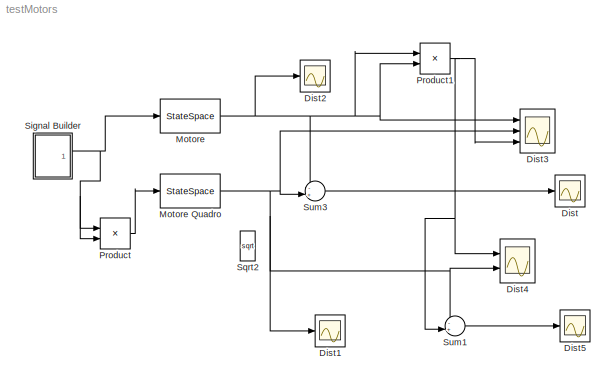
MODEL testMotors
KIND model
BLOCK [Scope] Dist
  DataFormat = StructureWithTime
  Floating = off
  LimitDataPoints = off
  NumInputPorts = 1
  Ports = [1]
  SID = 4
  SampleTime = 0
  ShowLegends = off
  TimeRange = 15
  YMax = 0.09
  YMin = -0.1
  ZoomMode = yonly
BLOCK [Scope] Dist1
  DataFormat = StructureWithTime
  Floating = off
  LimitDataPoints = off
  NumInputPorts = 1
  Ports = [1]
  SID = 6
  SampleTime = 0
  SaveName = ScopeData1
  ShowLegends = off
  TimeRange = 15
  YMax = 0.09
  YMin = -0.1
  ZoomMode = yonly
BLOCK [Scope] Dist2
  DataFormat = StructureWithTime
  Floating = off
  LimitDataPoints = off
  NumInputPorts = 1
  Ports = [1]
  SID = 7
  SampleTime = 0
  SaveName = ScopeData2
  ShowLegends = off
  TimeRange = 15
  YMax = 0.09
  YMin = -0.1
  ZoomMode = yonly
BLOCK [Scope] Dist3
  DataFormat = StructureWithTime
  Floating = off
  LimitDataPoints = off
  NumInputPorts = 3
  Ports = [3]
  SID = 12
  SampleTime = 0
  SaveName = ScopeData3
  ShowLegends = off
  TimeRange = 15
  YMax = 0.09~5~5
  YMin = -0.1~-5~-5
  ZoomMode = yonly
BLOCK [Scope] Dist4
  DataFormat = StructureWithTime
  Floating = off
  LimitDataPoints = off
  NumInputPorts = 2
  Ports = [2]
  SID = 16
  SampleTime = 0
  SaveName = ScopeData4
  ShowLegends = off
  TimeRange = 15
  YMax = 0.09~5
  YMin = -0.1~-5
  ZoomMode = yonly
BLOCK [Scope] Dist5
  DataFormat = StructureWithTime
  Floating = off
  LimitDataPoints = off
  NumInputPorts = 1
  Ports = [1]
  SID = 18
  SampleTime = 0
  SaveName = ScopeData5
  ShowLegends = off
  TimeRange = 15
  YMax = 0.09
  YMin = -0.1
BLOCK [StateSpace] Motore
  A = m.a
  B = m.b
  C = m.c
  D = m.d
  SID = 1
BLOCK [StateSpace] Motore Quadro
  A = m1.a
  B = m1.b
  C = m1.c
  D = m1.d
  SID = 2
BLOCK [Product] Product
  InputSameDT = off
  OutDataTypeStr = Inherit: Inherit via internal rule
  Ports = [2, 1]
  SID = 10
  SaturateOnIntegerOverflow = off
BLOCK [Product] Product1
  InputSameDT = off
  OutDataTypeStr = Inherit: Inherit via internal rule
  Ports = [2, 1]
  SID = 14
  SaturateOnIntegerOverflow = off
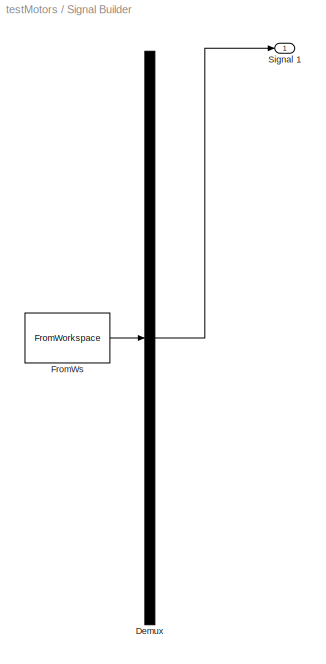
BLOCK [SubSystem] Signal Builder
  ClipboardFcn = sigbuilder_block('clipboard');
  CloseFcn = sigbuilder_block('close');
  ContinueFcn = sigbuilder_block('continue');
  CopyFcn = sigbuilder_block('copy');
  DeleteFcn = sigbuilder_block('delete');
  FunctionWithSeparateData = off
  LoadFcn = sigbuilder_block('load');
  MaskCapabilities = slmaskedcaps(gcbh)
  MaskDescription = Simulink:masks:SigbuilderBlock_MD
  MaskDisplay = plot(0, 0, 100, 100,[2, 2, 32, 32, 2], [68, 8, 8, 68, 68],[32, 2], [38, 38], [32, 19, 2],[53, 60, 44], [32, 17, 17, 2],[16, 16, 31, 31]);txt = getActiveGroup(gcbh);text(2, 100, txt,'verticalAlignment', 'top');
  MaskHideContents = on
  MaskIconFrame = on
  MaskIconOpaque = off
  MaskIconRotate = port
  MaskIconUnits = autoscale
  MaskInitialization = if ~strcmp(get_param(bdroot(gcbh),'SimulationStatus'),'stopped') tuvar = sigbuilder_block('maskInit'); end
  MaskPortRotate = default
  MaskSelfModifiable = on
  MaskType = Sigbuilder block
  MinAlgLoopOccurrences = off
  ModelCloseFcn = sigbuilder_block('modelClose');
  NameChangeFcn = sigbuilder_block('namechange');
  Opaque = off
  OpenFcn = sigbuilder_block('open',[341.6 120.8 550.4 400 ]);
  PauseFcn = sigbuilder_block('pause');
  Ports = [0, 1]
  PreSaveFcn = sigbuilder_block('preSave');
  PropExecContextOutsideSubsystem = off
  RTWSystemCode = Auto
  RequestExecContextInheritance = off
  SID = 13
  StartFcn = sigbuilder_block('start');
  StopFcn = sigbuilder_block('stop');
  Tag = STV Subsys
BLOCK [Demux] Signal Builder/Demux
  Outputs = 1
  Ports = [1, 1]
  SID = 13:1
  Tag = STV Demux
BLOCK [FromWorkspace] Signal Builder/FromWs
  SID = 13:2
  SampleTime = 0
  SigBuilderData = DataTag0
  Tag = STV FromWs
  VariableName = tuvar
  VnvData = DataTag1
  ZeroCross = on
BLOCK [Outport] Signal Builder/Signal 1
  IconDisplay = Port number
  SID = 13:3
  Tag = STV Outport
BLOCK [Sqrt] Sqrt2
  SID = 15
BLOCK [Sum] Sum1
  IconShape = round
  InputSameDT = off
  Inputs = -+|
  OutDataTypeStr = Inherit: Inherit via internal rule
  Ports = [2, 1]
  SID = 17
  SaturateOnIntegerOverflow = off
BLOCK [Sum] Sum3
  IconShape = round
  InputSameDT = off
  Inputs = -+|
  OutDataTypeStr = Inherit: Inherit via internal rule
  Ports = [2, 1]
  SID = 3
  SaturateOnIntegerOverflow = off
NET Motore Quadro:1 -> Dist1:1, Dist3:2, Dist4:2, Sum1:1, Sum3:2
NET Motore:1 -> Dist2:1, Dist3:1, Product1:1, Product1:2, Sum3:1
NET Product1:1 -> Dist3:3, Dist4:1, Sum1:2
LINE Product:1 -> Motore Quadro:1
LINE Signal Builder/Demux:1 -> Signal Builder/Signal 1:1
LINE Signal Builder/FromWs:1 -> Signal Builder/Demux:1
NET Signal Builder:1 -> Motore:1, Product:1, Product:2
LINE Sum1:1 -> Dist5:1
LINE Sum3:1 -> Dist:1
note: NET lines group one-source signal fan-out (src -> all destinations, sorted); 1:1 wires keep LINE
